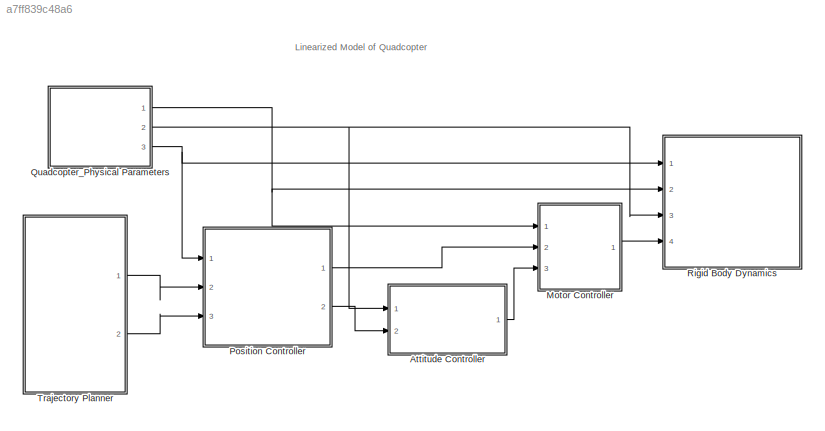
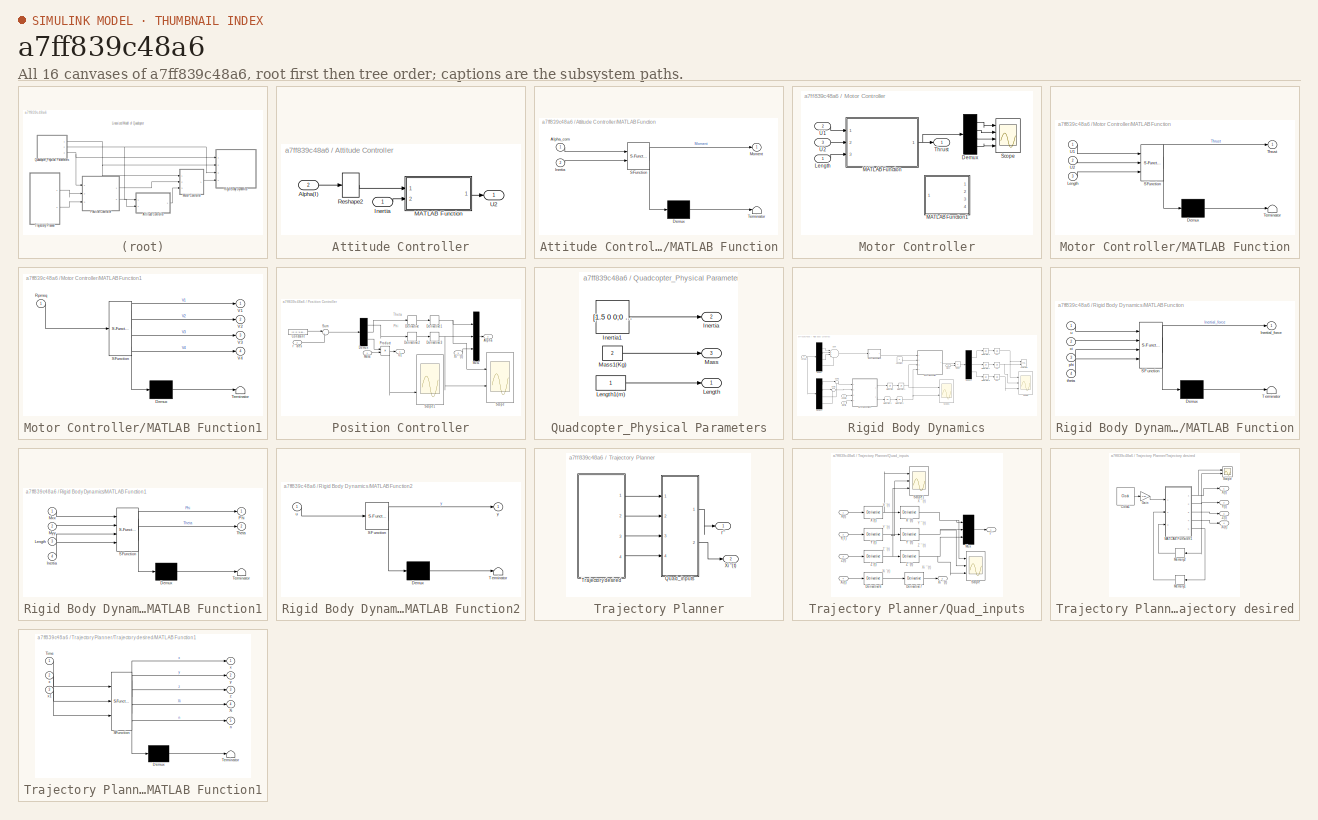
[diagram: thumbnail index - all 16 canvases of the model, root first then tree order]
MODEL slx_a7ff839c48a6
KIND model
CONFIG AbsTol = auto
CONFIG EnableMultiTasking = off
CONFIG FixedStep = 0.01
CONFIG MaxStep = auto
CONFIG MinStep = auto
CONFIG RelTol = 1e-3
CONFIG SampleTimeConstraint = Unconstrained
CONFIG Solver = FixedStepAuto
CONFIG SolverName = FixedStepAuto
CONFIG StartTime = 0.0
CONFIG StopTime = 500
BLOCK [SubSystem] Attitude Controller
  Ports = [2, 1]
  RequestExecContextInheritance = off
  Variant = off
BLOCK [Outport] Attitude Controller/ U2 
  IconDisplay = Port number
BLOCK [Inport] Attitude Controller/Alpha(I)
  IconDisplay = Port number
  Port = 2
BLOCK [Inport] Attitude Controller/Inertia
  IconDisplay = Port number
BLOCK [SubSystem] Attitude Controller/MATLAB Function
  ErrorFcn = Stateflow.Translate.translate
  PermitHierarchicalResolution = ExplicitOnly
  Ports = [2, 1]
  RequestExecContextInheritance = off
  SFBlockType = MATLAB Function
  TreatAsAtomicUnit = on
  Variant = off
BLOCK [Demux] Attitude Controller/MATLAB Function/ Demux 
  Outputs = 1
  Ports = [1, 1]
BLOCK [S-Function] Attitude Controller/MATLAB Function/ SFunction 
  EnableBusSupport = on
  FunctionName = sf_sfun
  PortCounts = [2 2]
  Ports = [2, 2]
  SFcnIsStateOwnerBlock = off
  SFunctionDeploymentMode = off
  Tag = Stateflow S-Function open_loop 2
BLOCK [Terminator] Attitude Controller/MATLAB Function/ Terminator 
BLOCK [Inport] Attitude Controller/MATLAB Function/Alpha_com
  IconDisplay = Port number
BLOCK [Inport] Attitude Controller/MATLAB Function/Inertia
  IconDisplay = Port number
  Port = 2
BLOCK [Outport] Attitude Controller/MATLAB Function/Moment
  IconDisplay = Port number
BLOCK [Reshape] Attitude Controller/Reshape2
  OutputDimensionality = Column vector (2-D)
  Ports = [1, 1]
BLOCK [SubSystem] Motor Controller
  Ports = [3, 1]
  RequestExecContextInheritance = off
  Variant = off
BLOCK [Demux] Motor Controller/Demux
  DisplayOption = bar
  Ports = [1, 4]
BLOCK [Inport] Motor Controller/Length
  IconDisplay = Port number
BLOCK [SubSystem] Motor Controller/MATLAB Function
  ErrorFcn = Stateflow.Translate.translate
  PermitHierarchicalResolution = ExplicitOnly
  Ports = [3, 1]
  RequestExecContextInheritance = off
  SFBlockType = MATLAB Function
  TreatAsAtomicUnit = on
  Variant = off
BLOCK [Demux] Motor Controller/MATLAB Function/ Demux 
  Outputs = 1
  Ports = [1, 1]
BLOCK [S-Function] Motor Controller/MATLAB Function/ SFunction 
  EnableBusSupport = on
  FunctionName = sf_sfun
  PortCounts = [3 2]
  Ports = [3, 2]
  SFcnIsStateOwnerBlock = off
  SFunctionDeploymentMode = off
  Tag = Stateflow S-Function open_loop 1
BLOCK [Terminator] Motor Controller/MATLAB Function/ Terminator 
BLOCK [Inport] Motor Controller/MATLAB Function/Length
  IconDisplay = Port number
  Port = 3
BLOCK [Outport] Motor Controller/MATLAB Function/Thrust
  IconDisplay = Port number
BLOCK [Inport] Motor Controller/MATLAB Function/U1
  IconDisplay = Port number
BLOCK [Inport] Motor Controller/MATLAB Function/U2
  IconDisplay = Port number
  Port = 2
BLOCK [SubSystem] Motor Controller/MATLAB Function1
  Commented = on
  ErrorFcn = Stateflow.Translate.translate
  PermitHierarchicalResolution = ExplicitOnly
  Ports = [1, 4]
  RequestExecContextInheritance = off
  SFBlockType = MATLAB Function
  TreatAsAtomicUnit = on
  Variant = off
BLOCK [Demux] Motor Controller/MATLAB Function1/ Demux 
  Outputs = 1
  Ports = [1, 1]
BLOCK [S-Function] Motor Controller/MATLAB Function1/ SFunction 
  EnableBusSupport = on
  FunctionName = sf_sfun
  PortCounts = [1 5]
  Ports = [1, 5]
  SFcnIsStateOwnerBlock = off
  SFunctionDeploymentMode = off
  Tag = Stateflow S-Function open_loop 3
BLOCK [Terminator] Motor Controller/MATLAB Function1/ Terminator 
BLOCK [Inport] Motor Controller/MATLAB Function1/Rpmsq
  IconDisplay = Port number
BLOCK [Outport] Motor Controller/MATLAB Function1/V1
  IconDisplay = Port number
BLOCK [Outport] Motor Controller/MATLAB Function1/V2
  IconDisplay = Port number
  Port = 2
BLOCK [Outport] Motor Controller/MATLAB Function1/V3
  IconDisplay = Port number
  Port = 3
BLOCK [Outport] Motor Controller/MATLAB Function1/V4
  IconDisplay = Port number
  Port = 4
BLOCK [Scope] Motor Controller/Scope
  NumInputPorts = 4
  Ports = [4]
  ScopeSpecificationString = Simulink.scopes.TimeScopeBlockCfg('CurrentConfiguration', extmgr.ConfigurationSet(extmgr.Configuration('Core','General UI',true),extmgr.Configuration('Core','Source UI',true),extmgr.Configuration('Sources','WiredSimulink',true,'DataLoggingVariableName','ScopeData1'),extmgr.Configuration('Visuals','Time Domain',true,'SerializedDisplays',{struct('MinYLimReal','4.79193','MaxYLimReal','5.01768','YLabe...<+3902ch>
BLOCK [Outport] Motor Controller/Thrust
  IconDisplay = Port number
BLOCK [Inport] Motor Controller/U1
  IconDisplay = Port number
  Port = 2
BLOCK [Inport] Motor Controller/U2
  IconDisplay = Port number
  Port = 3
BLOCK [SubSystem] Position Controller
  Ports = [3, 2]
  RequestExecContextInheritance = off
  Variant = off
BLOCK [Outport] Position Controller/Alpha
  IconDisplay = Port number
  Port = 2
BLOCK [Constant] Position Controller/Constant
  Value = [0 ;0 ;9.812]
BLOCK [Demux] Position Controller/Demux
  DisplayOption = bar
  Outputs = 3
  Ports = [1, 3]
BLOCK [Derivative] Position Controller/Derivative
BLOCK [Derivative] Position Controller/Derivative1
BLOCK [Derivative] Position Controller/Derivative2
BLOCK [Derivative] Position Controller/Derivative3
BLOCK [Inport] Position Controller/Mass
  IconDisplay = Port number
BLOCK [Mux] Position Controller/Mux1
  DisplayOption = bar
  Inputs = 3
  Ports = [3, 1]
BLOCK [Product] Position Controller/Product
  InputSameDT = off
  OutDataTypeStr = Inherit: Inherit via internal rule
  Ports = [2, 1]
  RndMeth = Floor
  SaturateOnIntegerOverflow = off
BLOCK [Scope] Position Controller/Scope
  NumInputPorts = 2
  Ports = [2]
  ScopeSpecificationString = Simulink.scopes.TimeScopeBlockCfg('CurrentConfiguration', extmgr.ConfigurationSet(extmgr.Configuration('Core','General UI',true),extmgr.Configuration('Core','Source UI',true),extmgr.Configuration('Sources','WiredSimulink',true,'DataLoggingVariableName','ScopeData1'),extmgr.Configuration('Visuals','Time Domain',true,'SerializedDisplays',{struct('MinYLimReal','-1.46104','MaxYLimReal','1.49232','YLab...<+2714ch>
BLOCK [Scope] Position Controller/Scope1
  NumInputPorts = 3
  Ports = [3]
  ScopeSpecificationString = Simulink.scopes.TimeScopeBlockCfg('CurrentConfiguration', extmgr.ConfigurationSet(extmgr.Configuration('Core','General UI',true),extmgr.Configuration('Core','Source UI',true),extmgr.Configuration('Sources','WiredSimulink',true,'DataLoggingVariableName','ScopeData1'),extmgr.Configuration('Visuals','Time Domain',true,'SerializedDisplays',{struct('MinYLimReal','-0.00045','MaxYLimReal','0.00045','YLab...<+2766ch>
BLOCK [Sum] Position Controller/Sum
  IconShape = round
  InputSameDT = off
  Inputs = |++
  OutDataTypeStr = Inherit: Inherit via internal rule
  Ports = [2, 1]
  SaturateOnIntegerOverflow = off
BLOCK [Outport] Position Controller/U1
  IconDisplay = Port number
BLOCK [Inport] Position Controller/Xi ''(t)
  IconDisplay = Port number
  Port = 3
BLOCK [Inport] Position Controller/r'' des
  IconDisplay = Port number
  Port = 2
BLOCK [SubSystem] Quadcopter_Physical Parameters
  Ports = [0, 3]
  RequestExecContextInheritance = off
  Variant = off
BLOCK [Outport] Quadcopter_Physical Parameters/Inertia
  IconDisplay = Port number
  Port = 2
BLOCK [Constant] Quadcopter_Physical Parameters/Inertia1
  Value = [1.5 0 0;0 1.5 0;0 0 1.5]
BLOCK [Outport] Quadcopter_Physical Parameters/Length
  IconDisplay = Port number
BLOCK [Constant] Quadcopter_Physical Parameters/Length1(m)
BLOCK [Outport] Quadcopter_Physical Parameters/Mass
  IconDisplay = Port number
  Port = 3
BLOCK [Constant] Quadcopter_Physical Parameters/Mass1(Kg)
  Value = 2
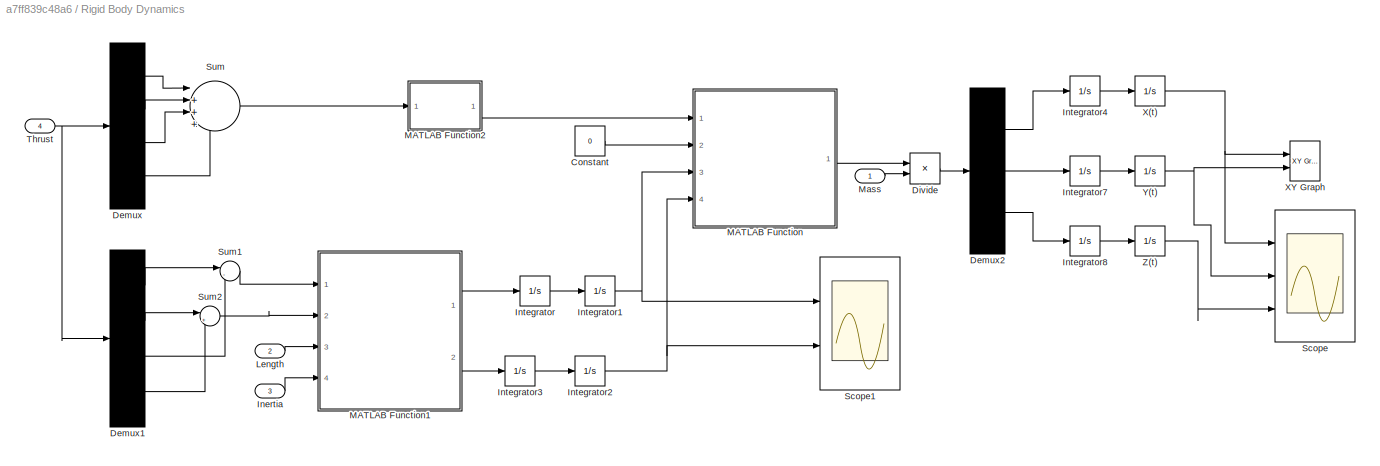
BLOCK [SubSystem] Rigid Body Dynamics
  Ports = [4]
  RequestExecContextInheritance = off
  Variant = off
BLOCK [Constant] Rigid Body Dynamics/Constant
  Value = 0
BLOCK [Demux] Rigid Body Dynamics/Demux
  DisplayOption = bar
  Ports = [1, 4]
BLOCK [Demux] Rigid Body Dynamics/Demux1
  DisplayOption = bar
  Ports = [1, 4]
BLOCK [Demux] Rigid Body Dynamics/Demux2
  DisplayOption = bar
  Outputs = 3
  Ports = [1, 3]
BLOCK [Product] Rigid Body Dynamics/Divide
  InputSameDT = off
  Inputs = */
  OutDataTypeStr = Inherit: Inherit via internal rule
  Ports = [2, 1]
  RndMeth = Floor
  SaturateOnIntegerOverflow = off
BLOCK [Inport] Rigid Body Dynamics/Inertia
  IconDisplay = Port number
  Port = 3
BLOCK [Integrator] Rigid Body Dynamics/Integrator
  Ports = [1, 1]
BLOCK [Integrator] Rigid Body Dynamics/Integrator1
  Ports = [1, 1]
BLOCK [Integrator] Rigid Body Dynamics/Integrator2
  Ports = [1, 1]
BLOCK [Integrator] Rigid Body Dynamics/Integrator3
  Ports = [1, 1]
BLOCK [Integrator] Rigid Body Dynamics/Integrator4
  Ports = [1, 1]
BLOCK [Integrator] Rigid Body Dynamics/Integrator7
  Ports = [1, 1]
BLOCK [Integrator] Rigid Body Dynamics/Integrator8
  Ports = [1, 1]
BLOCK [Inport] Rigid Body Dynamics/Length 
  IconDisplay = Port number
  Port = 2
BLOCK [SubSystem] Rigid Body Dynamics/MATLAB Function
  ErrorFcn = Stateflow.Translate.translate
  PermitHierarchicalResolution = ExplicitOnly
  Ports = [4, 1]
  RequestExecContextInheritance = off
  SFBlockType = MATLAB Function
  TreatAsAtomicUnit = on
  Variant = off
BLOCK [Demux] Rigid Body Dynamics/MATLAB Function/ Demux 
  Outputs = 1
  Ports = [1, 1]
BLOCK [S-Function] Rigid Body Dynamics/MATLAB Function/ SFunction 
  EnableBusSupport = on
  FunctionName = sf_sfun
  PortCounts = [4 2]
  Ports = [4, 2]
  SFcnIsStateOwnerBlock = off
  SFunctionDeploymentMode = off
  Tag = Stateflow S-Function open_loop 4
BLOCK [Terminator] Rigid Body Dynamics/MATLAB Function/ Terminator 
BLOCK [Outport] Rigid Body Dynamics/MATLAB Function/Inertial_force
  IconDisplay = Port number
BLOCK [Inport] Rigid Body Dynamics/MATLAB Function/phi
  IconDisplay = Port number
  Port = 3
BLOCK [Inport] Rigid Body Dynamics/MATLAB Function/theta
  IconDisplay = Port number
  Port = 4
BLOCK [Inport] Rigid Body Dynamics/MATLAB Function/u
  IconDisplay = Port number
BLOCK [Inport] Rigid Body Dynamics/MATLAB Function/xi
  IconDisplay = Port number
  Port = 2
BLOCK [SubSystem] Rigid Body Dynamics/MATLAB Function1
  ErrorFcn = Stateflow.Translate.translate
  PermitHierarchicalResolution = ExplicitOnly
  Ports = [4, 2]
  RequestExecContextInheritance = off
  SFBlockType = MATLAB Function
  TreatAsAtomicUnit = on
  Variant = off
BLOCK [Demux] Rigid Body Dynamics/MATLAB Function1/ Demux 
  Outputs = 1
  Ports = [1, 1]
BLOCK [S-Function] Rigid Body Dynamics/MATLAB Function1/ SFunction 
  EnableBusSupport = on
  FunctionName = sf_sfun
  PortCounts = [4 3]
  Ports = [4, 3]
  SFcnIsStateOwnerBlock = off
  SFunctionDeploymentMode = off
  Tag = Stateflow S-Function open_loop 5
BLOCK [Terminator] Rigid Body Dynamics/MATLAB Function1/ Terminator 
BLOCK [Inport] Rigid Body Dynamics/MATLAB Function1/Inertia
  IconDisplay = Port number
  Port = 4
BLOCK [Inport] Rigid Body Dynamics/MATLAB Function1/Length
  IconDisplay = Port number
  Port = 3
BLOCK [Inport] Rigid Body Dynamics/MATLAB Function1/Mxx
  IconDisplay = Port number
BLOCK [Inport] Rigid Body Dynamics/MATLAB Function1/Myy
  IconDisplay = Port number
  Port = 2
BLOCK [Outport] Rigid Body Dynamics/MATLAB Function1/Phi
  IconDisplay = Port number
BLOCK [Outport] Rigid Body Dynamics/MATLAB Function1/Theta
  IconDisplay = Port number
  Port = 2
BLOCK [SubSystem] Rigid Body Dynamics/MATLAB Function2
  ErrorFcn = Stateflow.Translate.translate
  PermitHierarchicalResolution = ExplicitOnly
  Ports = [1, 1]
  RequestExecContextInheritance = off
  SFBlockType = MATLAB Function
  TreatAsAtomicUnit = on
  Variant = off
BLOCK [Demux] Rigid Body Dynamics/MATLAB Function2/ Demux 
  Outputs = 1
  Ports = [1, 1]
BLOCK [S-Function] Rigid Body Dynamics/MATLAB Function2/ SFunction 
  EnableBusSupport = on
  FunctionName = sf_sfun
  PortCounts = [1 2]
  Ports = [1, 2]
  SFcnIsStateOwnerBlock = off
  SFunctionDeploymentMode = off
  Tag = Stateflow S-Function open_loop 6
BLOCK [Terminator] Rigid Body Dynamics/MATLAB Function2/ Terminator 
BLOCK [Inport] Rigid Body Dynamics/MATLAB Function2/u
  IconDisplay = Port number
BLOCK [Outport] Rigid Body Dynamics/MATLAB Function2/y
  IconDisplay = Port number
BLOCK [Inport] Rigid Body Dynamics/Mass
  IconDisplay = Port number
BLOCK [Scope] Rigid Body Dynamics/Scope
  NumInputPorts = 3
  Ports = [3]
  ScopeSpecificationString = Simulink.scopes.TimeScopeBlockCfg('CurrentConfiguration', extmgr.ConfigurationSet(extmgr.Configuration('Core','General UI',true),extmgr.Configuration('Core','Source UI',true),extmgr.Configuration('Sources','WiredSimulink',true),extmgr.Configuration('Visuals','Time Domain',true,'SerializedDisplays',{struct('MinYLimReal','-84771.24212','MaxYLimReal','10310.69908','YLabelReal','','MinYLimMag','   0.0...<+2748ch>
BLOCK [Scope] Rigid Body Dynamics/Scope1
  NumInputPorts = 2
  Ports = [2]
  ScopeSpecificationString = Simulink.scopes.TimeScopeBlockCfg('CurrentConfiguration', extmgr.ConfigurationSet(extmgr.Configuration('Core','General UI',true),extmgr.Configuration('Core','Source UI',true),extmgr.Configuration('Sources','WiredSimulink',true,'DataLoggingVariableName','ScopeData1'),extmgr.Configuration('Visuals','Time Domain',true,'SerializedDisplays',{struct('MinYLimReal','-116908.53314','MaxYLimReal','12989.837...<+2051ch>
BLOCK [Sum] Rigid Body Dynamics/Sum
  IconShape = round
  InputSameDT = off
  Inputs = |++++
  OutDataTypeStr = Inherit: Inherit via internal rule
  Ports = [4, 1]
  SaturateOnIntegerOverflow = off
BLOCK [Sum] Rigid Body Dynamics/Sum1
  IconShape = round
  InputSameDT = off
  Inputs = |-+
  OutDataTypeStr = Inherit: Inherit via internal rule
  Ports = [2, 1]
  SaturateOnIntegerOverflow = off
BLOCK [Sum] Rigid Body Dynamics/Sum2
  IconShape = round
  InputSameDT = off
  Inputs = |+-
  OutDataTypeStr = Inherit: Inherit via internal rule
  Ports = [2, 1]
  SaturateOnIntegerOverflow = off
BLOCK [Inport] Rigid Body Dynamics/Thrust
  IconDisplay = Port number
  Port = 4
BLOCK [Integrator] Rigid Body Dynamics/X(t)
  Ports = [1, 1]
BLOCK [Reference] Rigid Body Dynamics/XY Graph  REF=simulink/Sinks/XY Graph
  Ports = [2]
  SourceBlock = simulink/Sinks/XY Graph
  SourceProductBaseCode = SL
  SourceProductName = Simulink
  SourceType = XY scope.
BLOCK [Integrator] Rigid Body Dynamics/Y(t)
  Ports = [1, 1]
BLOCK [Integrator] Rigid Body Dynamics/Z(t)
  Ports = [1, 1]
BLOCK [SubSystem] Trajectory Planner
  Ports = [0, 2]
  RequestExecContextInheritance = off
  Variant = off
BLOCK [SubSystem] Trajectory Planner/Quad_inputs
  Ports = [4, 2]
  RequestExecContextInheritance = off
  Variant = off
BLOCK [Derivative] Trajectory Planner/Quad_inputs/Derivative6
BLOCK [Derivative] Trajectory Planner/Quad_inputs/Derivative7
BLOCK [Mux] Trajectory Planner/Quad_inputs/Mux
  DisplayOption = bar
  Inputs = 3
  Ports = [3, 1]
BLOCK [Scope] Trajectory Planner/Quad_inputs/Scope
  NumInputPorts = 3
  Ports = [3]
  ScopeSpecificationString = Simulink.scopes.TimeScopeBlockCfg('CurrentConfiguration', extmgr.ConfigurationSet(extmgr.Configuration('Core','General UI',true),extmgr.Configuration('Core','Source UI',true),extmgr.Configuration('Sources','WiredSimulink',true,'DataLoggingVariableName','ScopeData1'),extmgr.Configuration('Visuals','Time Domain',true,'SerializedDisplays',{struct('MinYLimReal','-0.00891','MaxYLimReal','0.00891','YLab...<+2769ch>
BLOCK [Scope] Trajectory Planner/Quad_inputs/Scope1
  NumInputPorts = 3
  Ports = [3]
  ScopeSpecificationString = Simulink.scopes.TimeScopeBlockCfg('CurrentConfiguration', extmgr.ConfigurationSet(extmgr.Configuration('Core','General UI',true),extmgr.Configuration('Core','Source UI',true),extmgr.Configuration('Sources','WiredSimulink',true,'DataLoggingVariableName','ScopeData1'),extmgr.Configuration('Visuals','Time Domain',true,'SerializedDisplays',{struct('MinYLimReal','-0.26042','MaxYLimReal','0.26042','YLab...<+2763ch>
BLOCK [Derivative] Trajectory Planner/Quad_inputs/X''(t)
BLOCK [Derivative] Trajectory Planner/Quad_inputs/X'(t)
  CoefficientInTFapproximation = 1
BLOCK [Inport] Trajectory Planner/Quad_inputs/X(t)
  IconDisplay = Port number
BLOCK [Outport] Trajectory Planner/Quad_inputs/Xi ''(t)
  IconDisplay = Port number
  Port = 2
BLOCK [Inport] Trajectory Planner/Quad_inputs/Xi(t)
  IconDisplay = Port number
  Port = 4
BLOCK [Derivative] Trajectory Planner/Quad_inputs/Y''(t)
  CoefficientInTFapproximation = 1
BLOCK [Derivative] Trajectory Planner/Quad_inputs/Y'(t)
  CoefficientInTFapproximation = 1
BLOCK [Inport] Trajectory Planner/Quad_inputs/Y(T)
  IconDisplay = Port number
  Port = 2
BLOCK [Derivative] Trajectory Planner/Quad_inputs/Z''(t)
BLOCK [Derivative] Trajectory Planner/Quad_inputs/Z'(t)
BLOCK [Inport] Trajectory Planner/Quad_inputs/Z(t)
  IconDisplay = Port number
  Port = 3
BLOCK [Outport] Trajectory Planner/Quad_inputs/r''
  IconDisplay = Port number
BLOCK [SubSystem] Trajectory Planner/Trajectory desired
  Ports = [0, 4]
  RequestExecContextInheritance = off
  Variant = off
BLOCK [Clock] Trajectory Planner/Trajectory desired/Clock1
  DisplayTime = on
BLOCK [Gain] Trajectory Planner/Trajectory desired/Gain
  Gain = 1/60
  OutDataTypeStr = Inherit: Inherit via internal rule
  ParamDataTypeStr = Inherit: Inherit via internal rule
  SaturateOnIntegerOverflow = off
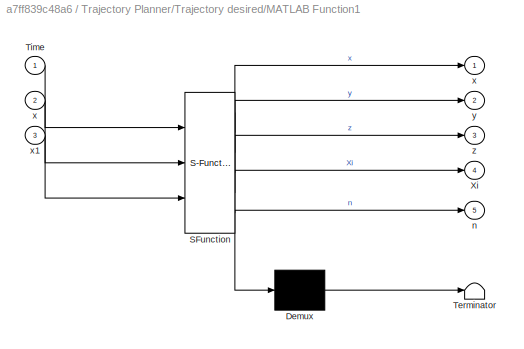
BLOCK [SubSystem] Trajectory Planner/Trajectory desired/MATLAB Function1
  ErrorFcn = Stateflow.Translate.translate
  PermitHierarchicalResolution = ExplicitOnly
  Ports = [3, 5]
  RequestExecContextInheritance = off
  SFBlockType = MATLAB Function
  TreatAsAtomicUnit = on
  Variant = off
BLOCK [Demux] Trajectory Planner/Trajectory desired/MATLAB Function1/ Demux 
  Outputs = 1
  Ports = [1, 1]
BLOCK [S-Function] Trajectory Planner/Trajectory desired/MATLAB Function1/ SFunction 
  EnableBusSupport = on
  FunctionName = sf_sfun
  PortCounts = [3 6]
  Ports = [3, 6]
  SFcnIsStateOwnerBlock = off
  SFunctionDeploymentMode = off
  Tag = Stateflow S-Function open_loop 11
BLOCK [Terminator] Trajectory Planner/Trajectory desired/MATLAB Function1/ Terminator 
BLOCK [Inport] Trajectory Planner/Trajectory desired/MATLAB Function1/Time
  IconDisplay = Port number
BLOCK [Outport] Trajectory Planner/Trajectory desired/MATLAB Function1/Xi
  IconDisplay = Port number
  Port = 4
BLOCK [Outport] Trajectory Planner/Trajectory desired/MATLAB Function1/n
  IconDisplay = Port number
  Port = 5
BLOCK [Outport] Trajectory Planner/Trajectory desired/MATLAB Function1/x
  IconDisplay = Port number
BLOCK [Inport] Trajectory Planner/Trajectory desired/MATLAB Function1/x 
  IconDisplay = Port number
  Port = 2
BLOCK [Inport] Trajectory Planner/Trajectory desired/MATLAB Function1/x1
  IconDisplay = Port number
  Port = 3
BLOCK [Outport] Trajectory Planner/Trajectory desired/MATLAB Function1/y
  IconDisplay = Port number
  Port = 2
BLOCK [Outport] Trajectory Planner/Trajectory desired/MATLAB Function1/z
  IconDisplay = Port number
  Port = 3
BLOCK [Memory] Trajectory Planner/Trajectory desired/Memory1
BLOCK [Memory] Trajectory Planner/Trajectory desired/Memory2
BLOCK [Scope] Trajectory Planner/Trajectory desired/Scope
  NumInputPorts = 2
  Ports = [2]
  ScopeSpecificationString = Simulink.scopes.TimeScopeBlockCfg('CurrentConfiguration', extmgr.ConfigurationSet(extmgr.Configuration('Core','General UI',true),extmgr.Configuration('Core','Source UI',true),extmgr.Configuration('Sources','WiredSimulink',true,'DataLoggingVariableName','ScopeData1'),extmgr.Configuration('Visuals','Time Domain',true,'SerializedDisplays',{struct('MinYLimReal','-1.25','MaxYLimReal','11.25','YLabelRea...<+2098ch>
BLOCK [Outport] Trajectory Planner/Trajectory desired/X(t)
  IconDisplay = Port number
BLOCK [Outport] Trajectory Planner/Trajectory desired/Xi(t)
  IconDisplay = Port number
  Port = 4
BLOCK [Outport] Trajectory Planner/Trajectory desired/Y(t)
  IconDisplay = Port number
  Port = 2
BLOCK [Outport] Trajectory Planner/Trajectory desired/Z(t)
  IconDisplay = Port number
  Port = 3
BLOCK [Outport] Trajectory Planner/Xi ''(t)
  IconDisplay = Port number
  Port = 2
BLOCK [Outport] Trajectory Planner/r''
  IconDisplay = Port number
ANNOTATION (root): Linearized Model of Quadcopter
ANNOTATION Position Controller: Phi
ANNOTATION Position Controller: Theta
ANNOTATION Trajectory Planner/Quad_inputs: X ''(t)
ANNOTATION Trajectory Planner/Quad_inputs: X '(t)
ANNOTATION Trajectory Planner/Quad_inputs: Xi ''(t)
ANNOTATION Trajectory Planner/Quad_inputs: Xi '(t)
ANNOTATION Trajectory Planner/Quad_inputs: Y ''(t)
ANNOTATION Trajectory Planner/Quad_inputs: Y '(t)
ANNOTATION Trajectory Planner/Quad_inputs: Z ''(t)
ANNOTATION Trajectory Planner/Quad_inputs: Z '(t)
LINE Attitude Controller/Alpha(I):1 -> Attitude Controller/Reshape2:1
LINE Attitude Controller/Inertia:1 -> Attitude Controller/MATLAB Function:2
LINE Attitude Controller/MATLAB Function:1 -> Attitude Controller/ U2 :1
LINE Attitude Controller/Reshape2:1 -> Attitude Controller/MATLAB Function:1
LINE Attitude Controller:1 -> Motor Controller:3
LINE Motor Controller/Demux:1 -> Motor Controller/Scope:1
LINE Motor Controller/Demux:2 -> Motor Controller/Scope:2
LINE Motor Controller/Demux:3 -> Motor Controller/Scope:3
LINE Motor Controller/Demux:4 -> Motor Controller/Scope:4
LINE Motor Controller/Length:1 -> Motor Controller/MATLAB Function:3
NET Motor Controller/MATLAB Function:1 -> Motor Controller/Demux:1, Motor Controller/Thrust:1
LINE Motor Controller/U1:1 -> Motor Controller/MATLAB Function:1
LINE Motor Controller/U2:1 -> Motor Controller/MATLAB Function:2
LINE Motor Controller:1 -> Rigid Body Dynamics:4
LINE Position Controller/Constant:1 -> Position Controller/Sum:1
LINE Position Controller/Demux:1 -> Position Controller/Derivative2:1
LINE Position Controller/Demux:2 -> Position Controller/Derivative:1
LINE Position Controller/Demux:3 -> Position Controller/Product:1
NET Position Controller/Derivative1:1 -> Position Controller/Mux1:1, Position Controller/Scope:1
LINE Position Controller/Derivative2:1 -> Position Controller/Derivative3:1
NET Position Controller/Derivative3:1 -> Position Controller/Mux1:2, Position Controller/Scope:2
LINE Position Controller/Derivative:1 -> Position Controller/Derivative1:1
LINE Position Controller/Mass:1 -> Position Controller/Product:2
LINE Position Controller/Mux1:1 -> Position Controller/Alpha:1
NET Position Controller/Product:1 -> Position Controller/Scope1:3, Position Controller/U1:1
LINE Position Controller/Sum:1 -> Position Controller/Demux:1
LINE Position Controller/Xi ''(t):1 -> Position Controller/Mux1:3
LINE Position Controller/r'' des:1 -> Position Controller/Sum:2
LINE Position Controller:1 -> Motor Controller:2
LINE Position Controller:2 -> Attitude Controller:2
LINE Quadcopter_Physical Parameters/Inertia1:1 -> Quadcopter_Physical Parameters/Inertia:1
LINE Quadcopter_Physical Parameters/Length1(m):1 -> Quadcopter_Physical Parameters/Length:1
LINE Quadcopter_Physical Parameters/Mass1(Kg):1 -> Quadcopter_Physical Parameters/Mass:1
NET Quadcopter_Physical Parameters:1 -> Motor Controller:1, Rigid Body Dynamics:2
NET Quadcopter_Physical Parameters:2 -> Attitude Controller:1, Rigid Body Dynamics:3
NET Quadcopter_Physical Parameters:3 -> Position Controller:1, Rigid Body Dynamics:1
LINE Rigid Body Dynamics/Constant:1 -> Rigid Body Dynamics/MATLAB Function:2
LINE Rigid Body Dynamics/Demux1:1 -> Rigid Body Dynamics/Sum1:1
LINE Rigid Body Dynamics/Demux1:2 -> Rigid Body Dynamics/Sum2:1
LINE Rigid Body Dynamics/Demux1:3 -> Rigid Body Dynamics/Sum1:2
LINE Rigid Body Dynamics/Demux1:4 -> Rigid Body Dynamics/Sum2:2
LINE Rigid Body Dynamics/Demux2:1 -> Rigid Body Dynamics/Integrator4:1
LINE Rigid Body Dynamics/Demux2:2 -> Rigid Body Dynamics/Integrator7:1
LINE Rigid Body Dynamics/Demux2:3 -> Rigid Body Dynamics/Integrator8:1
LINE Rigid Body Dynamics/Demux:1 -> Rigid Body Dynamics/Sum:1
LINE Rigid Body Dynamics/Demux:2 -> Rigid Body Dynamics/Sum:2
LINE Rigid Body Dynamics/Demux:3 -> Rigid Body Dynamics/Sum:3
LINE Rigid Body Dynamics/Demux:4 -> Rigid Body Dynamics/Sum:4
LINE Rigid Body Dynamics/Divide:1 -> Rigid Body Dynamics/Demux2:1
LINE Rigid Body Dynamics/Inertia:1 -> Rigid Body Dynamics/MATLAB Function1:4
NET Rigid Body Dynamics/Integrator1:1 -> Rigid Body Dynamics/MATLAB Function:3, Rigid Body Dynamics/Scope1:1
NET Rigid Body Dynamics/Integrator2:1 -> Rigid Body Dynamics/MATLAB Function:4, Rigid Body Dynamics/Scope1:2
LINE Rigid Body Dynamics/Integrator3:1 -> Rigid Body Dynamics/Integrator2:1
LINE Rigid Body Dynamics/Integrator4:1 -> Rigid Body Dynamics/X(t):1
LINE Rigid Body Dynamics/Integrator7:1 -> Rigid Body Dynamics/Y(t):1
LINE Rigid Body Dynamics/Integrator8:1 -> Rigid Body Dynamics/Z(t):1
LINE Rigid Body Dynamics/Integrator:1 -> Rigid Body Dynamics/Integrator1:1
LINE Rigid Body Dynamics/Length :1 -> Rigid Body Dynamics/MATLAB Function1:3
LINE Rigid Body Dynamics/MATLAB Function1:1 -> Rigid Body Dynamics/Integrator:1
LINE Rigid Body Dynamics/MATLAB Function1:2 -> Rigid Body Dynamics/Integrator3:1
LINE Rigid Body Dynamics/MATLAB Function2:1 -> Rigid Body Dynamics/MATLAB Function:1
LINE Rigid Body Dynamics/MATLAB Function:1 -> Rigid Body Dynamics/Divide:1
LINE Rigid Body Dynamics/Mass:1 -> Rigid Body Dynamics/Divide:2
LINE Rigid Body Dynamics/Sum1:1 -> Rigid Body Dynamics/MATLAB Function1:1
LINE Rigid Body Dynamics/Sum2:1 -> Rigid Body Dynamics/MATLAB Function1:2
LINE Rigid Body Dynamics/Sum:1 -> Rigid Body Dynamics/MATLAB Function2:1
NET Rigid Body Dynamics/Thrust:1 -> Rigid Body Dynamics/Demux1:1, Rigid Body Dynamics/Demux:1
NET Rigid Body Dynamics/X(t):1 -> Rigid Body Dynamics/Scope:1, Rigid Body Dynamics/XY Graph:1
NET Rigid Body Dynamics/Y(t):1 -> Rigid Body Dynamics/Scope:2, Rigid Body Dynamics/XY Graph:2
LINE Rigid Body Dynamics/Z(t):1 -> Rigid Body Dynamics/Scope:3
LINE Trajectory Planner/Quad_inputs/Derivative6:1 -> Trajectory Planner/Quad_inputs/Derivative7:1
LINE Trajectory Planner/Quad_inputs/Derivative7:1 -> Trajectory Planner/Quad_inputs/Xi ''(t):1
LINE Trajectory Planner/Quad_inputs/Mux:1 -> Trajectory Planner/Quad_inputs/r'':1
NET Trajectory Planner/Quad_inputs/X''(t):1 -> Trajectory Planner/Quad_inputs/Mux:1, Trajectory Planner/Quad_inputs/Scope:1
NET Trajectory Planner/Quad_inputs/X'(t):1 -> Trajectory Planner/Quad_inputs/Scope1:1, Trajectory Planner/Quad_inputs/X''(t):1
LINE Trajectory Planner/Quad_inputs/X(t):1 -> Trajectory Planner/Quad_inputs/X'(t):1
LINE Trajectory Planner/Quad_inputs/Xi(t):1 -> Trajectory Planner/Quad_inputs/Derivative6:1
NET Trajectory Planner/Quad_inputs/Y''(t):1 -> Trajectory Planner/Quad_inputs/Mux:2, Trajectory Planner/Quad_inputs/Scope:2
NET Trajectory Planner/Quad_inputs/Y'(t):1 -> Trajectory Planner/Quad_inputs/Scope1:2, Trajectory Planner/Quad_inputs/Y''(t):1
LINE Trajectory Planner/Quad_inputs/Y(T):1 -> Trajectory Planner/Quad_inputs/Y'(t):1
NET Trajectory Planner/Quad_inputs/Z''(t):1 -> Trajectory Planner/Quad_inputs/Mux:3, Trajectory Planner/Quad_inputs/Scope:3
NET Trajectory Planner/Quad_inputs/Z'(t):1 -> Trajectory Planner/Quad_inputs/Scope1:3, Trajectory Planner/Quad_inputs/Z''(t):1
LINE Trajectory Planner/Quad_inputs/Z(t):1 -> Trajectory Planner/Quad_inputs/Z'(t):1
LINE Trajectory Planner/Quad_inputs:1 -> Trajectory Planner/r'':1
LINE Trajectory Planner/Quad_inputs:2 -> Trajectory Planner/Xi ''(t):1
LINE Trajectory Planner/Trajectory desired/Clock1:1 -> Trajectory Planner/Trajectory desired/Gain:1
LINE Trajectory Planner/Trajectory desired/Gain:1 -> Trajectory Planner/Trajectory desired/MATLAB Function1:1
NET Trajectory Planner/Trajectory desired/MATLAB Function1:1 -> Trajectory Planner/Trajectory desired/Scope:1, Trajectory Planner/Trajectory desired/X(t):1
NET Trajectory Planner/Trajectory desired/MATLAB Function1:2 -> Trajectory Planner/Trajectory desired/Memory2:1, Trajectory Planner/Trajectory desired/Scope:2, Trajectory Planner/Trajectory desired/Y(t):1
LINE Trajectory Planner/Trajectory desired/MATLAB Function1:3 -> Trajectory Planner/Trajectory desired/Z(t):1
LINE Trajectory Planner/Trajectory desired/MATLAB Function1:4 -> Trajectory Planner/Trajectory desired/Xi(t):1
LINE Trajectory Planner/Trajectory desired/MATLAB Function1:5 -> Trajectory Planner/Trajectory desired/Memory1:1
LINE Trajectory Planner/Trajectory desired/Memory1:1 -> Trajectory Planner/Trajectory desired/MATLAB Function1:2
LINE Trajectory Planner/Trajectory desired/Memory2:1 -> Trajectory Planner/Trajectory desired/MATLAB Function1:3
LINE Trajectory Planner/Trajectory desired:1 -> Trajectory Planner/Quad_inputs:1
LINE Trajectory Planner/Trajectory desired:2 -> Trajectory Planner/Quad_inputs:2
LINE Trajectory Planner/Trajectory desired:3 -> Trajectory Planner/Quad_inputs:3
LINE Trajectory Planner/Trajectory desired:4 -> Trajectory Planner/Quad_inputs:4
LINE Trajectory Planner:1 -> Position Controller:2
LINE Trajectory Planner:2 -> Position Controller:3
note: NET lines group one-source signal fan-out (src -> all destinations, sorted); 1:1 wires keep LINE
CHART Motor Controller/MATLAB Function states=1 transitions=1
  STATE_LABEL 'eML_blk_kernel()'
  STATE_LABEL 'SCRIPT:\nfunction Thrust = fcn(U1, U2, Length)\n\nB=[U1;U2(1)/(Length);U2(2)/(Length);U2(3)];\nAinv=[0.25 0.5 0 0.25;0.25 0 0.5 -0.25;0.25 -0.5 0  0.25;0.25 0 -0.5 -0.25];\nThrust=Ainv*B;\nend'
CHART Attitude Controller/MATLAB Function states=1 transitions=1
  STATE_LABEL 'eML_blk_kernel()'
  STATE_LABEL 'SCRIPT:\nfunction Moment = fcn(Alpha_com,Inertia)\n\n Moment=[Alpha_com(1)*Inertia(1,1);Alpha_com(2)*Inertia(2,2);Alpha_com(3)*Inertia(3,3)];\n'
CHART Motor Controller/MATLAB Function1 states=1 transitions=1
  STATE_LABEL 'eML_blk_kernel()'
  STATE_LABEL 'SCRIPT:\nfunction [V1,V2,V3,V4] = fcn(Rpmsq)\n%   Here rpmsq versus voltage relation is used'
CHART Rigid Body Dynamics/MATLAB Function states=1 transitions=1
  STATE_LABEL 'eML_blk_kernel()'
  STATE_LABEL 'SCRIPT:\nfunction Inertial_force = Rotation(u,xi,phi,theta)\n\nRx=[1,0,0;0,cos(phi),-sin(phi);0,sin(phi),cos(phi)];\nRy=[cos(theta),0,sin(theta);0,1,0;-sin(theta),0,cos(theta)];\nRz=[cos(xi),-sin(xi),0;sin(xi),cos(xi),0;0,0,1];\nRib=(Rx*Ry*Rz);\nInertial_force = Rib*u;\nend\n'
CHART Rigid Body Dynamics/MATLAB Function1 states=1 transitions=1
  STATE_LABEL 'eML_blk_kernel()'
  STATE_LABEL 'SCRIPT:\nfunction [Phi,Theta] = Alpha(Mxx,Myy,Length,Inertia)\n\nPhi= (Mxx*Length)/Inertia(1,1);\nTheta=(Myy*Length)/Inertia(2,2);\nend\n'
CHART Rigid Body Dynamics/MATLAB Function2 states=1 transitions=1
  STATE_LABEL 'eML_blk_kernel()'
  STATE_LABEL 'SCRIPT:\nfunction y = fcn(u)\n\ny = [0;0;u];\n'
CHART Trajectory Planner/Trajectory desired/MATLAB Function1 states=1 transitions=1
  STATE_LABEL 'eML_blk_kernel()'
  STATE_LABEL 'SCRIPT:\n\nfunction [x,y,z,Xi,n] =fcn(Time,x,x1)\nperiod=6;\nz=0;\nXi=0;\nn=x;\n\n   if Time==(n+1)*period\n       n=n+1;\n       \n    end\ntime=Time-n*period; \n    if time<=1.5\n        x=7.90123456790123*time^5-29.6296296296296*time^4+29.6296296296296*time^3;\n        y=x1;\n        \n    elseif time<=3\n        x=10;\n        y=3.95061728395062*time^5-44.4444444444*time^4+192.592592592593*time^3-400*time^2+400*...<+346ch>'
